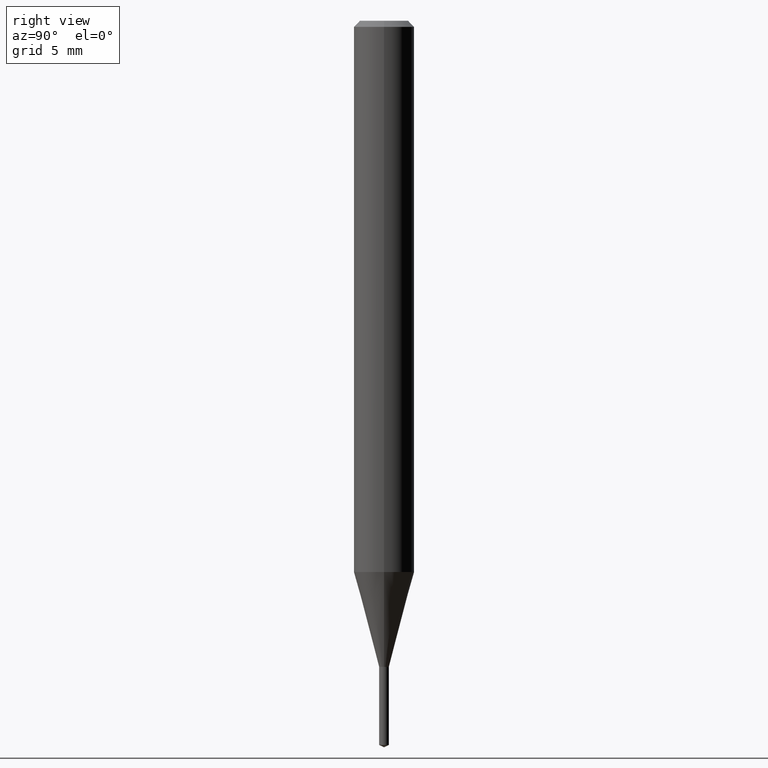
[diagram: clean part render]
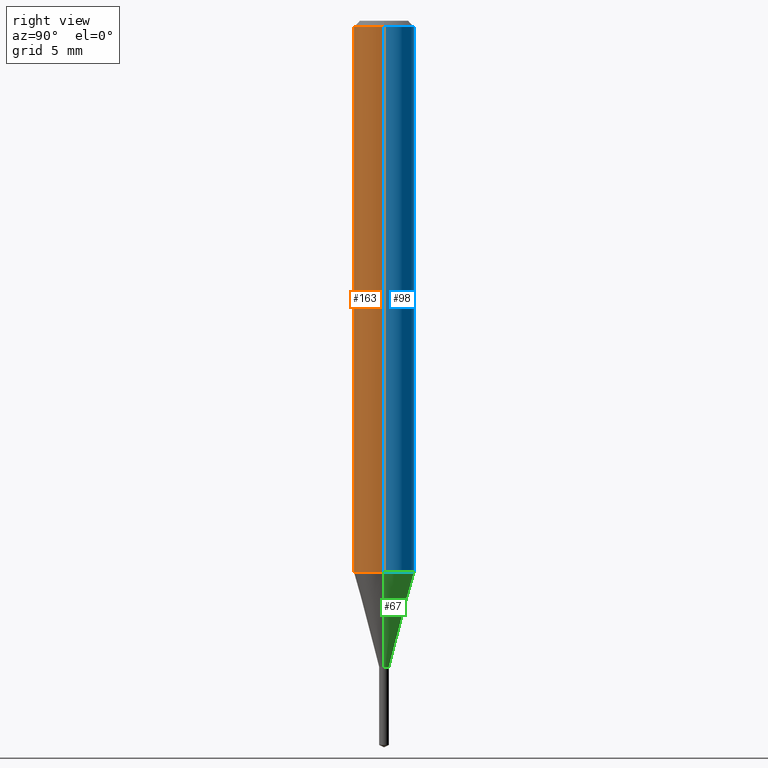
[diagram: same view with three faces highlighted in distinct colors, each labeled with its STEP entity id]
A machine part, right view with three faces highlighted in distinct colors.
Their STEP definitions:

[orange] entity #163 — the highlighted cylindrical surface (edge-blend (fillet) strip) has radius 1.5875 mm, axis along (-0, 0, 1).
#1 = LINE ( 'NONE', #344, #278 ) ;
#12 = EDGE_LOOP ( 'NONE', ( #185, #227, #340, #69 ) ) ;
#14 = EDGE_CURVE ( 'NONE', #72, #416, #101, .T. ) ;
#27 = FACE_OUTER_BOUND ( 'NONE', #12, .T. ) ;
#47 = CARTESIAN_POINT ( 'NONE',  ( 0.06250000000000013878, -4.410674317752272148E-15, -1.138267332602639570 ) ) ;
#55 = CYLINDRICAL_SURFACE ( 'NONE', #192, 0.06250000000000006939 ) ;
#64 = DIRECTION ( 'NONE',  ( -2.445468806185136877E-29, 3.491481338843145188E-15, 1.000000000000000000 ) ) ;
#68 = DIRECTION ( 'NONE',  ( 1.000000000000000000, -6.982962677686266711E-15, 0.000000000000000000 ) ) ;
#69 = ORIENTED_EDGE ( 'NONE', *, *, #240, .F. ) ;
#72 = VERTEX_POINT ( 'NONE', #327 ) ;
#84 = AXIS2_PLACEMENT_3D ( 'NONE', #124, #281, #282 ) ;
#94 = VECTOR ( 'NONE', #64, 39.37007874015748143 ) ;
#101 = CIRCLE ( 'NONE', #84, 0.06250000000000013878 ) ;
#107 = CARTESIAN_POINT ( 'NONE',  ( -0.06250000000000000000, -1.564852123716145826E-15, -0.01250000000000008049 ) ) ;
#116 = VERTEX_POINT ( 'NONE', #291 ) ;
#124 = CARTESIAN_POINT ( 'NONE',  ( 2.783597254979316381E-29, -3.974239150396879690E-15, -1.138267332602639570 ) ) ;
#163 = ADVANCED_FACE ( 'NONE', ( #27 ), #55, .T. ) ;
#171 = CARTESIAN_POINT ( 'NONE',  ( 0.000000000000000000, 0.000000000000000000, 0.000000000000000000 ) ) ;
#185 = ORIENTED_EDGE ( 'NONE', *, *, #310, .F. ) ;
#192 = AXIS2_PLACEMENT_3D ( 'NONE', #171, #404, #433 ) ;
#209 = CIRCLE ( 'NONE', #441, 0.06250000000000000000 ) ;
#227 = ORIENTED_EDGE ( 'NONE', *, *, #14, .T. ) ;
#240 = EDGE_CURVE ( 'NONE', #265, #116, #209, .T. ) ;
#244 = DIRECTION ( 'NONE',  ( -2.445468806185136877E-29, 3.491481338843145188E-15, 1.000000000000000000 ) ) ;
#265 = VERTEX_POINT ( 'NONE', #107 ) ;
#278 = VECTOR ( 'NONE', #244, 39.37007874015748143 ) ;
#281 = DIRECTION ( 'NONE',  ( -2.445468806185136597E-29, 3.491481338843145583E-15, 1.000000000000000000 ) ) ;
#282 = DIRECTION ( 'NONE',  ( 1.000000000000000000, -6.982962677686262766E-15, 0.000000000000000000 ) ) ;
#291 = CARTESIAN_POINT ( 'NONE',  ( 0.06250000000000000000, -4.800786840909312308E-16, -0.01250000000000008049 ) ) ;
#310 = EDGE_CURVE ( 'NONE', #72, #265, #415, .T. ) ;
#327 = CARTESIAN_POINT ( 'NONE',  ( -0.06250000000000013878, -3.530149940546815891E-15, -1.138267332602639570 ) ) ;
#340 = ORIENTED_EDGE ( 'NONE', *, *, #434, .T. ) ;
#341 = CARTESIAN_POINT ( 'NONE',  ( -0.06250000000000006939, 4.440892098500631092E-16, -3.074334431409319267E-30 ) ) ;
#344 = CARTESIAN_POINT ( 'NONE',  ( 0.06250000000000006939, -4.364351673553921624E-16, 3.047610484872463374E-30 ) ) ;
#404 = DIRECTION ( 'NONE',  ( -2.445468806185136597E-29, 3.491481338843145583E-15, 1.000000000000000000 ) ) ;
#408 = DIRECTION ( 'NONE',  ( -2.445468806185136597E-29, 3.491481338843145583E-15, 1.000000000000000000 ) ) ;
#410 = CARTESIAN_POINT ( 'NONE',  ( 3.056836007731440539E-31, -4.364351673553960451E-17, -0.01250000000000008049 ) ) ;
#415 = LINE ( 'NONE', #341, #94 ) ;
#416 = VERTEX_POINT ( 'NONE', #47 ) ;
#433 = DIRECTION ( 'NONE',  ( 1.000000000000000000, -6.982962677686266711E-15, 4.876176775795935793E-29 ) ) ;
#434 = EDGE_CURVE ( 'NONE', #416, #116, #1, .T. ) ;
#441 = AXIS2_PLACEMENT_3D ( 'NONE', #410, #408, #68 ) ;

[blue] entity #98 — the highlighted cylindrical surface (edge-blend (fillet) strip) has radius 1.5875 mm, axis along (-0, 0, 1).
#1 = LINE ( 'NONE', #344, #278 ) ;
#21 = DIRECTION ( 'NONE',  ( 1.000000000000000000, -6.982962677686266711E-15, 4.876176775795935793E-29 ) ) ;
#47 = CARTESIAN_POINT ( 'NONE',  ( 0.06250000000000013878, -4.410674317752272148E-15, -1.138267332602639570 ) ) ;
#58 = DIRECTION ( 'NONE',  ( 1.000000000000000000, -6.982962677686266711E-15, 0.000000000000000000 ) ) ;
#64 = DIRECTION ( 'NONE',  ( -2.445468806185136877E-29, 3.491481338843145188E-15, 1.000000000000000000 ) ) ;
#72 = VERTEX_POINT ( 'NONE', #327 ) ;
#77 = EDGE_CURVE ( 'NONE', #116, #265, #367, .T. ) ;
#89 = CARTESIAN_POINT ( 'NONE',  ( 0.000000000000000000, 0.000000000000000000, 0.000000000000000000 ) ) ;
#94 = VECTOR ( 'NONE', #64, 39.37007874015748143 ) ;
#98 = ADVANCED_FACE ( 'NONE', ( #363 ), #330, .T. ) ;
#107 = CARTESIAN_POINT ( 'NONE',  ( -0.06250000000000000000, -1.564852123716145826E-15, -0.01250000000000008049 ) ) ;
#108 = ORIENTED_EDGE ( 'NONE', *, *, #310, .T. ) ;
#109 = DIRECTION ( 'NONE',  ( 1.000000000000000000, -6.982962677686262766E-15, 0.000000000000000000 ) ) ;
#112 = AXIS2_PLACEMENT_3D ( 'NONE', #339, #447, #109 ) ;
#116 = VERTEX_POINT ( 'NONE', #291 ) ;
#145 = EDGE_LOOP ( 'NONE', ( #467, #108, #484, #463 ) ) ;
#150 = AXIS2_PLACEMENT_3D ( 'NONE', #89, #366, #21 ) ;
#210 = CARTESIAN_POINT ( 'NONE',  ( 3.056836007731440539E-31, -4.364351673553960451E-17, -0.01250000000000008049 ) ) ;
#244 = DIRECTION ( 'NONE',  ( -2.445468806185136877E-29, 3.491481338843145188E-15, 1.000000000000000000 ) ) ;
#265 = VERTEX_POINT ( 'NONE', #107 ) ;
#278 = VECTOR ( 'NONE', #244, 39.37007874015748143 ) ;
#291 = CARTESIAN_POINT ( 'NONE',  ( 0.06250000000000000000, -4.800786840909312308E-16, -0.01250000000000008049 ) ) ;
#292 = AXIS2_PLACEMENT_3D ( 'NONE', #210, #395, #58 ) ;
#297 = EDGE_CURVE ( 'NONE', #416, #72, #451, .T. ) ;
#310 = EDGE_CURVE ( 'NONE', #72, #265, #415, .T. ) ;
#327 = CARTESIAN_POINT ( 'NONE',  ( -0.06250000000000013878, -3.530149940546815891E-15, -1.138267332602639570 ) ) ;
#330 = CYLINDRICAL_SURFACE ( 'NONE', #150, 0.06250000000000006939 ) ;
#339 = CARTESIAN_POINT ( 'NONE',  ( 2.783597254979316381E-29, -3.974239150396879690E-15, -1.138267332602639570 ) ) ;
#341 = CARTESIAN_POINT ( 'NONE',  ( -0.06250000000000006939, 4.440892098500631092E-16, -3.074334431409319267E-30 ) ) ;
#344 = CARTESIAN_POINT ( 'NONE',  ( 0.06250000000000006939, -4.364351673553921624E-16, 3.047610484872463374E-30 ) ) ;
#363 = FACE_OUTER_BOUND ( 'NONE', #145, .T. ) ;
#366 = DIRECTION ( 'NONE',  ( -2.445468806185136597E-29, 3.491481338843145583E-15, 1.000000000000000000 ) ) ;
#367 = CIRCLE ( 'NONE', #292, 0.06250000000000000000 ) ;
#395 = DIRECTION ( 'NONE',  ( -2.445468806185136597E-29, 3.491481338843145583E-15, 1.000000000000000000 ) ) ;
#415 = LINE ( 'NONE', #341, #94 ) ;
#416 = VERTEX_POINT ( 'NONE', #47 ) ;
#434 = EDGE_CURVE ( 'NONE', #416, #116, #1, .T. ) ;
#447 = DIRECTION ( 'NONE',  ( -2.445468806185136597E-29, 3.491481338843145583E-15, 1.000000000000000000 ) ) ;
#451 = CIRCLE ( 'NONE', #112, 0.06250000000000013878 ) ;
#463 = ORIENTED_EDGE ( 'NONE', *, *, #434, .F. ) ;
#467 = ORIENTED_EDGE ( 'NONE', *, *, #297, .T. ) ;
#484 = ORIENTED_EDGE ( 'NONE', *, *, #77, .F. ) ;

[green] entity #67 — the highlighted conical surface has half-angle 15 deg.
#18 = VECTOR ( 'NONE', #228, 39.37007874015748854 ) ;
#28 = CARTESIAN_POINT ( 'NONE',  ( -0.01000000000000000021, -4.587280128708514635E-15, -1.334200000000000275 ) ) ;
#39 = ORIENTED_EDGE ( 'NONE', *, *, #461, .F. ) ;
#47 = CARTESIAN_POINT ( 'NONE',  ( 0.06250000000000013878, -4.410674317752272148E-15, -1.138267332602639570 ) ) ;
#67 = ADVANCED_FACE ( 'NONE', ( #208 ), #285, .T. ) ;
#72 = VERTEX_POINT ( 'NONE', #327 ) ;
#103 = AXIS2_PLACEMENT_3D ( 'NONE', #168, #258, #368 ) ;
#109 = DIRECTION ( 'NONE',  ( 1.000000000000000000, -6.982962677686262766E-15, 0.000000000000000000 ) ) ;
#111 = CIRCLE ( 'NONE', #481, 0.01000000000000000021 ) ;
#112 = AXIS2_PLACEMENT_3D ( 'NONE', #339, #447, #109 ) ;
#142 = EDGE_CURVE ( 'NONE', #189, #489, #111, .T. ) ;
#168 = CARTESIAN_POINT ( 'NONE',  ( 3.262744481212209726E-29, -4.658334402284525505E-15, -1.334200000000000275 ) ) ;
#189 = VERTEX_POINT ( 'NONE', #435 ) ;
#203 = ORIENTED_EDGE ( 'NONE', *, *, #297, .F. ) ;
#208 = FACE_OUTER_BOUND ( 'NONE', #456, .T. ) ;
#218 = ORIENTED_EDGE ( 'NONE', *, *, #142, .T. ) ;
#223 = LINE ( 'NONE', #28, #18 ) ;
#224 = VECTOR ( 'NONE', #280, 39.37007874015748854 ) ;
#228 = DIRECTION ( 'NONE',  ( -0.2588190451025280114, 5.211531920934590485E-15, 0.9659258262890662028 ) ) ;
#252 = EDGE_CURVE ( 'NONE', #489, #72, #223, .T. ) ;
#258 = DIRECTION ( 'NONE',  ( -2.445468806185136597E-29, 3.491481338843145583E-15, 1.000000000000000000 ) ) ;
#280 = DIRECTION ( 'NONE',  ( 0.2588190451025280114, 1.565188264969568522E-15, 0.9659258262890662028 ) ) ;
#285 = CONICAL_SURFACE ( 'NONE', #103, 0.01000000000000000021, 0.2617993877991570129 ) ;
#297 = EDGE_CURVE ( 'NONE', #416, #72, #451, .T. ) ;
#327 = CARTESIAN_POINT ( 'NONE',  ( -0.06250000000000013878, -3.530149940546815891E-15, -1.138267332602639570 ) ) ;
#333 = ORIENTED_EDGE ( 'NONE', *, *, #252, .T. ) ;
#339 = CARTESIAN_POINT ( 'NONE',  ( 2.783597254979316381E-29, -3.974239150396879690E-15, -1.138267332602639570 ) ) ;
#348 = LINE ( 'NONE', #388, #224 ) ;
#356 = CARTESIAN_POINT ( 'NONE',  ( -0.01000000000000000021, -4.334671453843213207E-15, -1.334200000000000275 ) ) ;
#368 = DIRECTION ( 'NONE',  ( 1.000000000000000000, -6.982962677686235945E-15, 0.000000000000000000 ) ) ;
#388 = CARTESIAN_POINT ( 'NONE',  ( 0.01000000000000000021, -4.728164029061387226E-15, -1.334200000000000275 ) ) ;
#416 = VERTEX_POINT ( 'NONE', #47 ) ;
#430 = DIRECTION ( 'NONE',  ( -2.445468806185136597E-29, 3.491481338843145583E-15, 1.000000000000000000 ) ) ;
#435 = CARTESIAN_POINT ( 'NONE',  ( 0.01000000000000000021, -4.728164029061387226E-15, -1.334200000000000275 ) ) ;
#438 = DIRECTION ( 'NONE',  ( 1.000000000000000000, -6.982962677686235945E-15, 0.000000000000000000 ) ) ;
#447 = DIRECTION ( 'NONE',  ( -2.445468806185136597E-29, 3.491481338843145583E-15, 1.000000000000000000 ) ) ;
#451 = CIRCLE ( 'NONE', #112, 0.06250000000000013878 ) ;
#456 = EDGE_LOOP ( 'NONE', ( #218, #333, #203, #39 ) ) ;
#461 = EDGE_CURVE ( 'NONE', #189, #416, #348, .T. ) ;
#474 = CARTESIAN_POINT ( 'NONE',  ( 3.262744481212209726E-29, -4.658334402284525505E-15, -1.334200000000000275 ) ) ;
#481 = AXIS2_PLACEMENT_3D ( 'NONE', #474, #430, #438 ) ;
#489 = VERTEX_POINT ( 'NONE', #356 ) ;